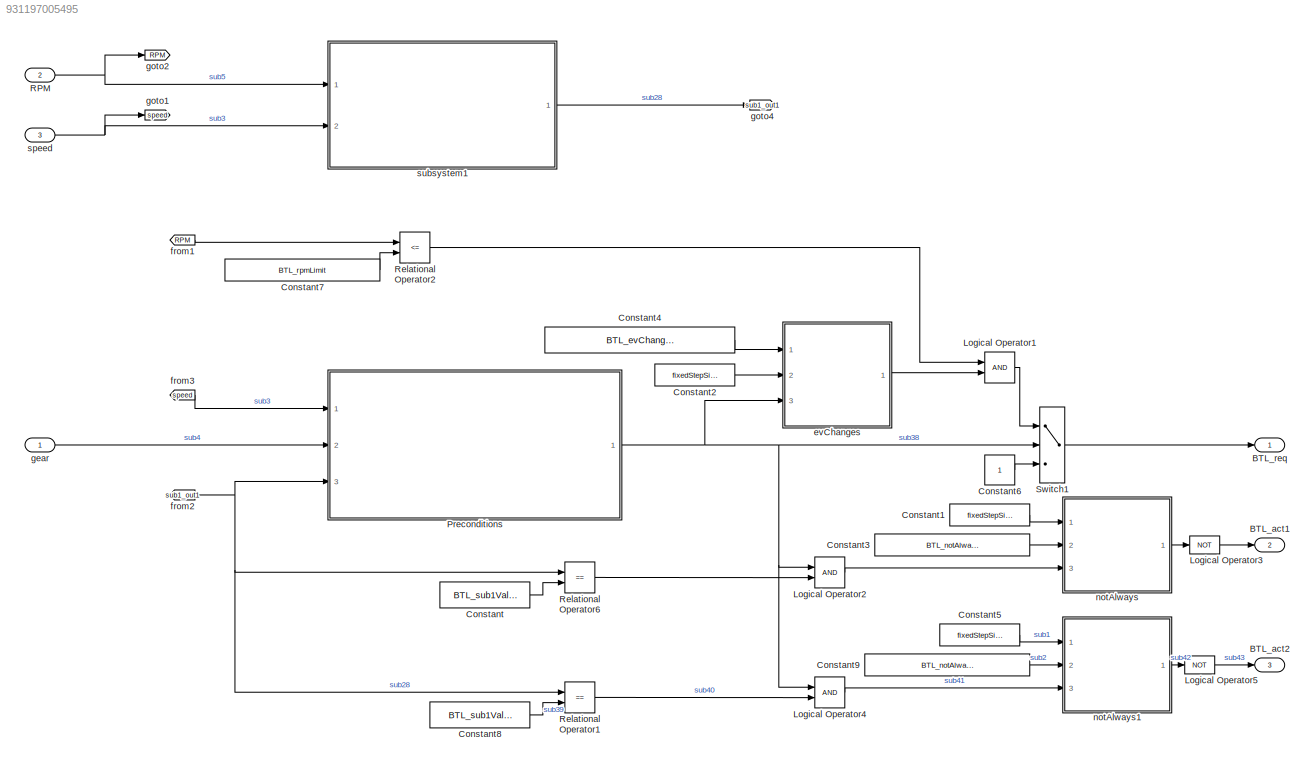
MODEL slx_931197005495
KIND model
CONFIG AbsTol = auto
CONFIG EnableMultiTasking = on
CONFIG FixedStep = fixedStepSize
CONFIG MaxStep = 0.001
CONFIG MinStep = auto
CONFIG RelTol = 1e-3
CONFIG SampleTimeConstraint = Unconstrained
CONFIG Solver = FixedStepDiscrete
CONFIG SolverName = FixedStepDiscrete
CONFIG StartTime = 0
CONFIG StopTime = 5
WORKSPACE source: mxarray member
WORKSPACE Occurrence: object (value not decoded)
WORKSPACE Partitions: object (value not decoded)
WORKSPACE Severity: object (value not decoded)
WORKSPACE block: handle (value not decoded)
WORKSPACE t = 0
WORKSPACE time = 0
BLOCK [Outport] BTL_act1
  IconDisplay = Port number
  OutDataTypeStr = boolean
  Port = 2
BLOCK [Outport] BTL_act2
  IconDisplay = Port number
  OutDataTypeStr = boolean
  Port = 3
BLOCK [Outport] BTL_req
  IconDisplay = Port number
  OutDataTypeStr = boolean
BLOCK [Constant] Constant
  Value = BTL_sub1Value
BLOCK [Constant] Constant1
  Value = fixedStepSize
BLOCK [Constant] Constant2
  Value = fixedStepSize
BLOCK [Constant] Constant3
  Value = BTL_notAlwaysTime
BLOCK [Constant] Constant4
  Value = BTL_evChangesTime
BLOCK [Constant] Constant5
  Value = fixedStepSize
BLOCK [Constant] Constant6
  OutDataTypeStr = boolean
BLOCK [Constant] Constant7
  Value = BTL_rpmLimit
BLOCK [Constant] Constant8
  Value = BTL_sub1Value2
BLOCK [Constant] Constant9
  Value = BTL_notAlwaysTime2
BLOCK [Logic] Logical Operator1
  AllPortsSameDT = off
  OutDataTypeStr = boolean
  Ports = [2, 1]
BLOCK [Logic] Logical Operator2
  AllPortsSameDT = off
  OutDataTypeStr = boolean
  Ports = [2, 1]
BLOCK [Logic] Logical Operator3
  AllPortsSameDT = off
  Operator = NOT
  OutDataTypeStr = boolean
  Ports = [1, 1]
BLOCK [Logic] Logical Operator4
  AllPortsSameDT = off
  OutDataTypeStr = boolean
  Ports = [2, 1]
BLOCK [Logic] Logical Operator5
  AllPortsSameDT = off
  Operator = NOT
  OutDataTypeStr = boolean
  Ports = [1, 1]
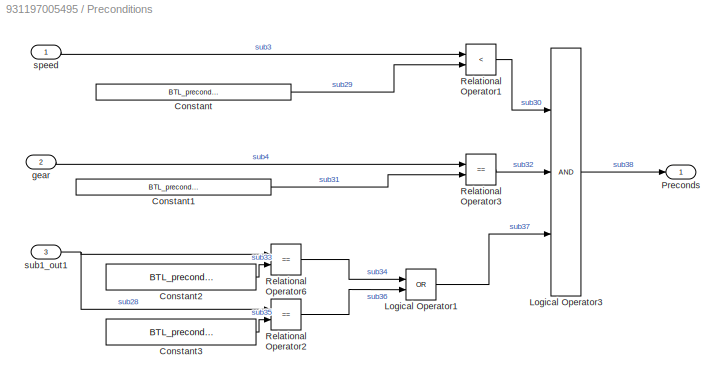
BLOCK [SubSystem] Preconditions
  Ports = [3, 1]
  RequestExecContextInheritance = off
BLOCK [Constant] Preconditions/Constant
  Value = BTL_preconditionSpeedLim
BLOCK [Constant] Preconditions/Constant1
  Value = BTL_preconditionGear
BLOCK [Constant] Preconditions/Constant2
  Value = BTL_preconditionSub1Value
BLOCK [Constant] Preconditions/Constant3
  Value = BTL_preconditionSub1Value2
BLOCK [Logic] Preconditions/Logical Operator1
  AllPortsSameDT = off
  Operator = OR
  OutDataTypeStr = boolean
  Ports = [2, 1]
BLOCK [Logic] Preconditions/Logical Operator3
  AllPortsSameDT = off
  Inputs = 3
  OutDataTypeStr = boolean
  Ports = [3, 1]
BLOCK [Outport] Preconditions/Preconds
  IconDisplay = Port number
BLOCK [RelationalOperator] Preconditions/Relational Operator1
  InputSameDT = off
  Operator = <
  OutDataTypeStr = boolean
  Ports = [2, 1]
BLOCK [RelationalOperator] Preconditions/Relational Operator2
  InputSameDT = off
  Operator = ==
  OutDataTypeStr = boolean
  Ports = [2, 1]
BLOCK [RelationalOperator] Preconditions/Relational Operator3
  InputSameDT = off
  Operator = ==
  OutDataTypeStr = boolean
  Ports = [2, 1]
BLOCK [RelationalOperator] Preconditions/Relational Operator6
  InputSameDT = off
  Operator = ==
  OutDataTypeStr = boolean
  Ports = [2, 1]
BLOCK [Inport] Preconditions/gear
  IconDisplay = Port number
  Port = 2
BLOCK [Inport] Preconditions/speed
  IconDisplay = Port number
BLOCK [Inport] Preconditions/sub1_out1
  IconDisplay = Port number
  Port = 3
BLOCK [Inport] RPM
  IconDisplay = Port number
  Port = 2
  PortDimensions = 1
  SamplingMode = Sample based
  SignalType = real
BLOCK [RelationalOperator] Relational Operator1
  InputSameDT = off
  Operator = ==
  OutDataTypeStr = boolean
  Ports = [2, 1]
BLOCK [RelationalOperator] Relational Operator2
  InputSameDT = off
  Operator = <=
  OutDataTypeStr = boolean
  Ports = [2, 1]
BLOCK [RelationalOperator] Relational Operator6
  InputSameDT = off
  Operator = ==
  OutDataTypeStr = boolean
  Ports = [2, 1]
BLOCK [Switch] Switch1
  Criteria = u2 ~= 0
  InputSameDT = off
  SaturateOnIntegerOverflow = off
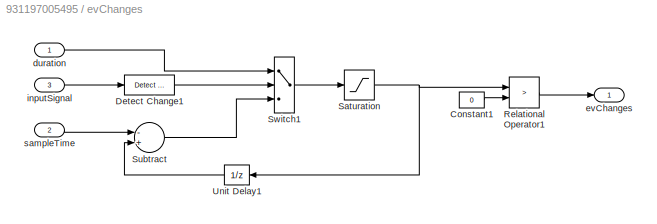
BLOCK [SubSystem] evChanges
  CopyFcn = set_param(gcbh,'LinkStatus','none');
  Ports = [3, 1]
  RequestExecContextInheritance = off
BLOCK [Constant] evChanges/Constant1
  Value = 0
BLOCK [Reference] evChanges/Detect Change1  REF=simulink/Logic and Bit
Operations/Detect
Change
  Ports = [1, 1]
  SourceBlock = simulink/Logic and Bit\nOperations/Detect\nChange
  SourceProductBaseCode = SL
  SourceProductName = Simulink
  SourceType = Detect Change
BLOCK [RelationalOperator] evChanges/Relational Operator1
  InputSameDT = off
  Operator = >
  OutDataTypeStr = boolean
  Ports = [2, 1]
BLOCK [Saturate] evChanges/Saturation
  InputPortMap = u0
  LowerLimit = 0
  Ports = [1, 1]
  UpperLimit = Inf
BLOCK [Sum] evChanges/Subtract
  InputSameDT = off
  Inputs = -+
  OutDataTypeStr = Inherit: Inherit via internal rule
  Ports = [2, 1]
  SaturateOnIntegerOverflow = off
BLOCK [Switch] evChanges/Switch1
  Criteria = u2 ~= 0
  InputSameDT = off
  SaturateOnIntegerOverflow = off
BLOCK [UnitDelay] evChanges/Unit Delay1
  HasFrameUpgradeWarning = on
  SampleTime = -1
BLOCK [Inport] evChanges/duration
  IconDisplay = Port number
BLOCK [Outport] evChanges/evChanges
  IconDisplay = Port number
  VectorParamsAs1DForOutWhenUnconnected = off
BLOCK [Inport] evChanges/inputSignal
  IconDisplay = Port number
  Port = 3
BLOCK [Inport] evChanges/sampleTime
  IconDisplay = Port number
  Port = 2
BLOCK [From] from1
  AttributesFormatString = %<GotoTag>
  GotoTag = RPM
BLOCK [From] from2
  AttributesFormatString = %<GotoTag>
  GotoTag = sub1_out1
BLOCK [From] from3
  AttributesFormatString = %<GotoTag>
  GotoTag = speed
BLOCK [Inport] gear
  IconDisplay = Port number
  PortDimensions = 1
  SamplingMode = Sample based
  SignalType = real
BLOCK [Goto] goto1
  AttributesFormatString = %<GotoTag>
  GotoTag = speed
BLOCK [Goto] goto2
  AttributesFormatString = %<GotoTag>
  GotoTag = RPM
BLOCK [Goto] goto4
  AttributesFormatString = %<GotoTag>
  GotoTag = sub1_out1
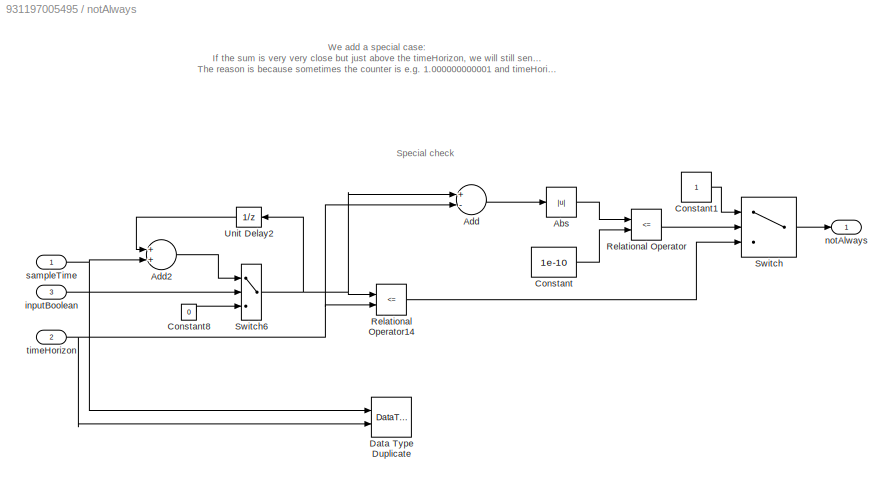
BLOCK [SubSystem] notAlways
  CopyFcn = set_param(gcbh,'LinkStatus','none');
  Ports = [3, 1]
  RequestExecContextInheritance = off
BLOCK [Abs] notAlways/Abs
  SaturateOnIntegerOverflow = off
BLOCK [Sum] notAlways/Add
  InputSameDT = off
  Inputs = +-
  OutDataTypeStr = Inherit: Inherit via internal rule
  Ports = [2, 1]
  SaturateOnIntegerOverflow = off
BLOCK [Sum] notAlways/Add2
  InputSameDT = off
  OutDataTypeStr = Inherit: Inherit via internal rule
  Ports = [2, 1]
  SaturateOnIntegerOverflow = off
BLOCK [Constant] notAlways/Constant
  Value = 1e-10
BLOCK [Constant] notAlways/Constant1
  OutDataTypeStr = boolean
BLOCK [Constant] notAlways/Constant8
  OutDataTypeStr = Inherit: Inherit via back propagation
  Value = 0
BLOCK [DataTypeDuplicate] notAlways/Data Type Duplicate
  Ports = [2]
BLOCK [RelationalOperator] notAlways/Relational Operator
  InputSameDT = off
  Operator = <=
  OutDataTypeStr = boolean
  Ports = [2, 1]
  RndMeth = Simplest
BLOCK [RelationalOperator] notAlways/Relational Operator14
  InputSameDT = off
  Operator = <=
  OutDataTypeStr = boolean
  Ports = [2, 1]
BLOCK [Switch] notAlways/Switch
  Criteria = u2 ~= 0
  InputSameDT = off
  SaturateOnIntegerOverflow = off
BLOCK [Switch] notAlways/Switch6
  Criteria = u2 ~= 0
  InputSameDT = off
  SaturateOnIntegerOverflow = off
BLOCK [UnitDelay] notAlways/Unit Delay2
  HasFrameUpgradeWarning = on
  SampleTime = -1
BLOCK [Inport] notAlways/inputBoolean
  IconDisplay = Port number
  Port = 3
BLOCK [Outport] notAlways/notAlways
  IconDisplay = Port number
  VectorParamsAs1DForOutWhenUnconnected = off
BLOCK [Inport] notAlways/sampleTime
  IconDisplay = Port number
BLOCK [Inport] notAlways/timeHorizon
  IconDisplay = Port number
  Port = 2
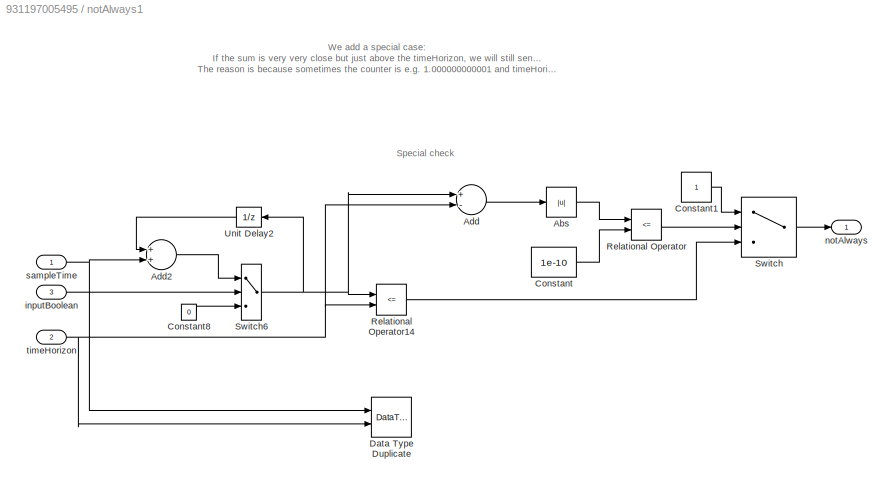
BLOCK [SubSystem] notAlways1
  CopyFcn = set_param(gcbh,'LinkStatus','none');
  Ports = [3, 1]
  RequestExecContextInheritance = off
BLOCK [Abs] notAlways1/Abs
  SaturateOnIntegerOverflow = off
BLOCK [Sum] notAlways1/Add
  InputSameDT = off
  Inputs = +-
  OutDataTypeStr = Inherit: Inherit via internal rule
  Ports = [2, 1]
  SaturateOnIntegerOverflow = off
BLOCK [Sum] notAlways1/Add2
  InputSameDT = off
  OutDataTypeStr = Inherit: Inherit via internal rule
  Ports = [2, 1]
  SaturateOnIntegerOverflow = off
BLOCK [Constant] notAlways1/Constant
  Value = 1e-10
BLOCK [Constant] notAlways1/Constant1
  OutDataTypeStr = boolean
BLOCK [Constant] notAlways1/Constant8
  OutDataTypeStr = Inherit: Inherit via back propagation
  Value = 0
BLOCK [DataTypeDuplicate] notAlways1/Data Type Duplicate
  Ports = [2]
BLOCK [RelationalOperator] notAlways1/Relational Operator
  InputSameDT = off
  Operator = <=
  OutDataTypeStr = boolean
  Ports = [2, 1]
  RndMeth = Simplest
BLOCK [RelationalOperator] notAlways1/Relational Operator14
  InputSameDT = off
  Operator = <=
  OutDataTypeStr = boolean
  Ports = [2, 1]
BLOCK [Switch] notAlways1/Switch
  Criteria = u2 ~= 0
  InputSameDT = off
  SaturateOnIntegerOverflow = off
BLOCK [Switch] notAlways1/Switch6
  Criteria = u2 ~= 0
  InputSameDT = off
  SaturateOnIntegerOverflow = off
BLOCK [UnitDelay] notAlways1/Unit Delay2
  HasFrameUpgradeWarning = on
  SampleTime = -1
BLOCK [Inport] notAlways1/inputBoolean
  IconDisplay = Port number
  Port = 3
BLOCK [Outport] notAlways1/notAlways
  IconDisplay = Port number
  VectorParamsAs1DForOutWhenUnconnected = off
BLOCK [Inport] notAlways1/sampleTime
  IconDisplay = Port number
BLOCK [Inport] notAlways1/timeHorizon
  IconDisplay = Port number
  Port = 2
BLOCK [Inport] speed
  IconDisplay = Port number
  Port = 3
  PortDimensions = 1
  SamplingMode = Sample based
  SignalType = real
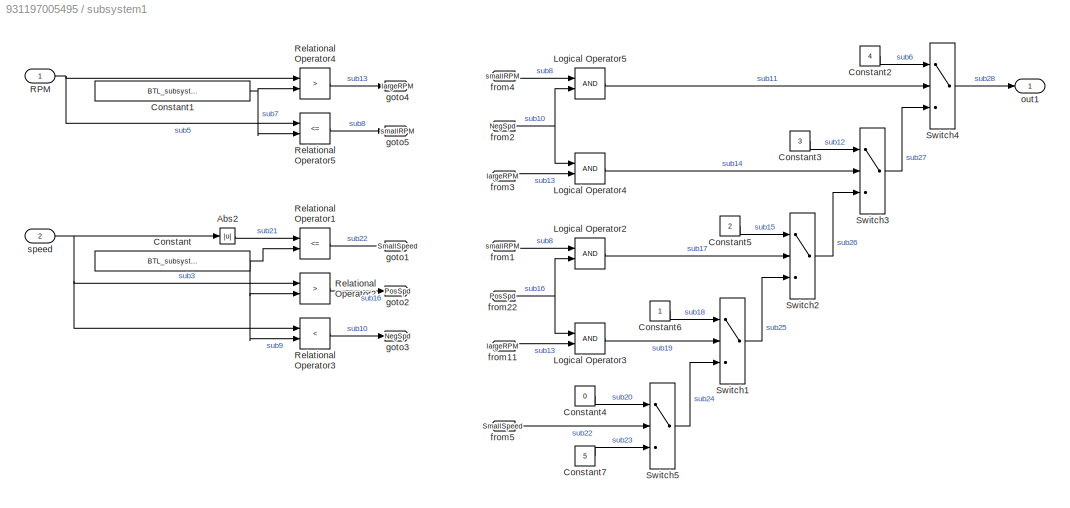
BLOCK [SubSystem] subsystem1
  Ports = [2, 1]
  RequestExecContextInheritance = off
BLOCK [Abs] subsystem1/Abs2
  SaturateOnIntegerOverflow = off
BLOCK [Constant] subsystem1/Constant
  Value = BTL_subsystem1_speedLimit
BLOCK [Constant] subsystem1/Constant1
  Value = BTL_subsystem1_rpmLimit
BLOCK [Constant] subsystem1/Constant2
  Value = 4
BLOCK [Constant] subsystem1/Constant3
  Value = 3
BLOCK [Constant] subsystem1/Constant4
  Value = 0
BLOCK [Constant] subsystem1/Constant5
  Value = 2
BLOCK [Constant] subsystem1/Constant6
BLOCK [Constant] subsystem1/Constant7
  Value = 5
BLOCK [Logic] subsystem1/Logical Operator2
  AllPortsSameDT = off
  OutDataTypeStr = boolean
  Ports = [2, 1]
BLOCK [Logic] subsystem1/Logical Operator3
  AllPortsSameDT = off
  OutDataTypeStr = boolean
  Ports = [2, 1]
BLOCK [Logic] subsystem1/Logical Operator4
  AllPortsSameDT = off
  OutDataTypeStr = boolean
  Ports = [2, 1]
BLOCK [Logic] subsystem1/Logical Operator5
  AllPortsSameDT = off
  OutDataTypeStr = boolean
  Ports = [2, 1]
BLOCK [Inport] subsystem1/RPM
  IconDisplay = Port number
BLOCK [RelationalOperator] subsystem1/Relational Operator1
  InputSameDT = off
  Operator = <=
  OutDataTypeStr = boolean
  Ports = [2, 1]
BLOCK [RelationalOperator] subsystem1/Relational Operator2
  InputSameDT = off
  Operator = >
  OutDataTypeStr = boolean
  Ports = [2, 1]
BLOCK [RelationalOperator] subsystem1/Relational Operator3
  InputSameDT = off
  Operator = <
  OutDataTypeStr = boolean
  Ports = [2, 1]
BLOCK [RelationalOperator] subsystem1/Relational Operator4
  InputSameDT = off
  Operator = >
  OutDataTypeStr = boolean
  Ports = [2, 1]
BLOCK [RelationalOperator] subsystem1/Relational Operator5
  InputSameDT = off
  Operator = <=
  OutDataTypeStr = boolean
  Ports = [2, 1]
BLOCK [Switch] subsystem1/Switch1
  Criteria = u2 ~= 0
  InputSameDT = off
  SaturateOnIntegerOverflow = off
BLOCK [Switch] subsystem1/Switch2
  Criteria = u2 ~= 0
  InputSameDT = off
  SaturateOnIntegerOverflow = off
BLOCK [Switch] subsystem1/Switch3
  Criteria = u2 ~= 0
  InputSameDT = off
  SaturateOnIntegerOverflow = off
BLOCK [Switch] subsystem1/Switch4
  Criteria = u2 ~= 0
  InputSameDT = off
  SaturateOnIntegerOverflow = off
BLOCK [Switch] subsystem1/Switch5
  Criteria = u2 ~= 0
  InputSameDT = off
  SaturateOnIntegerOverflow = off
BLOCK [From] subsystem1/from1
  AttributesFormatString = %<GotoTag>
  GotoTag = smallRPM
BLOCK [From] subsystem1/from11
  AttributesFormatString = %<GotoTag>
  GotoTag = largeRPM
BLOCK [From] subsystem1/from2
  AttributesFormatString = %<GotoTag>
  GotoTag = NegSpd
BLOCK [From] subsystem1/from22
  AttributesFormatString = %<GotoTag>
  GotoTag = PosSpd
BLOCK [From] subsystem1/from3
  AttributesFormatString = %<GotoTag>
  GotoTag = largeRPM
BLOCK [From] subsystem1/from4
  AttributesFormatString = %<GotoTag>
  GotoTag = smallRPM
BLOCK [From] subsystem1/from5
  AttributesFormatString = %<GotoTag>
  GotoTag = SmallSpeed
BLOCK [Goto] subsystem1/goto1
  AttributesFormatString = %<GotoTag>
  GotoTag = SmallSpeed
BLOCK [Goto] subsystem1/goto2
  AttributesFormatString = %<GotoTag>
  GotoTag = PosSpd
BLOCK [Goto] subsystem1/goto3
  AttributesFormatString = %<GotoTag>
  GotoTag = NegSpd
BLOCK [Goto] subsystem1/goto4
  AttributesFormatString = %<GotoTag>
  GotoTag = largeRPM
BLOCK [Goto] subsystem1/goto5
  AttributesFormatString = %<GotoTag>
  GotoTag = smallRPM
BLOCK [Outport] subsystem1/out1
  IconDisplay = Port number
BLOCK [Inport] subsystem1/speed
  IconDisplay = Port number
  Port = 2
ANNOTATION notAlways: We add a special case: If the sum is very very close but just above the timeHorizon, we will still send TRUE as output! The reason is because sometimes the counter is e.g. 1.000000000001 and timeHorizon is 1, which is essentially just a floating point error.
ANNOTATION notAlways: Special check
ANNOTATION notAlways1: We add a special case: If the sum is very very close but just above the timeHorizon, we will still send TRUE as output! The reason is because sometimes the counter is e.g. 1.000000000001 and timeHorizon is 1, which is essentially just a floating point error.
ANNOTATION notAlways1: Special check
LINE Constant1:1 -> notAlways:1
LINE Constant2:1 -> evChanges:2
LINE Constant3:1 -> notAlways:2
LINE Constant4:1 -> evChanges:1
LINE Constant5:1 -> notAlways1:1
LINE Constant6:1 -> Switch1:3
LINE Constant7:1 -> Relational Operator2:2
LINE Constant8:1 -> Relational Operator1:2
LINE Constant9:1 -> notAlways1:2
LINE Constant:1 -> Relational Operator6:2
LINE Logical Operator1:1 -> Switch1:1
LINE Logical Operator2:1 -> notAlways:3
LINE Logical Operator3:1 -> BTL_act1:1
LINE Logical Operator4:1 -> notAlways1:3
LINE Logical Operator5:1 -> BTL_act2:1
LINE Preconditions/Constant1:1 -> Preconditions/Relational Operator3:2
LINE Preconditions/Constant2:1 -> Preconditions/Relational Operator6:2
LINE Preconditions/Constant3:1 -> Preconditions/Relational Operator2:2
LINE Preconditions/Constant:1 -> Preconditions/Relational Operator1:2
LINE Preconditions/Logical Operator1:1 -> Preconditions/Logical Operator3:3
LINE Preconditions/Logical Operator3:1 -> Preconditions/Preconds:1
LINE Preconditions/Relational Operator1:1 -> Preconditions/Logical Operator3:1
LINE Preconditions/Relational Operator2:1 -> Preconditions/Logical Operator1:2
LINE Preconditions/Relational Operator3:1 -> Preconditions/Logical Operator3:2
LINE Preconditions/Relational Operator6:1 -> Preconditions/Logical Operator1:1
LINE Preconditions/gear:1 -> Preconditions/Relational Operator3:1
LINE Preconditions/speed:1 -> Preconditions/Relational Operator1:1
NET Preconditions/sub1_out1:1 -> Preconditions/Relational Operator2:1, Preconditions/Relational Operator6:1
NET Preconditions:1 -> Logical Operator2:1, Logical Operator4:1, Switch1:2, evChanges:3
NET RPM:1 -> goto2:1, subsystem1:1
LINE Relational Operator1:1 -> Logical Operator4:2
LINE Relational Operator2:1 -> Logical Operator1:1
LINE Relational Operator6:1 -> Logical Operator2:2
LINE Switch1:1 -> BTL_req:1
LINE evChanges/Constant1:1 -> evChanges/Relational Operator1:2
LINE evChanges/Detect Change1:1 -> evChanges/Switch1:2
LINE evChanges/Relational Operator1:1 -> evChanges/evChanges:1
NET evChanges/Saturation:1 -> evChanges/Relational Operator1:1, evChanges/Unit Delay1:1
LINE evChanges/Subtract:1 -> evChanges/Switch1:3
LINE evChanges/Switch1:1 -> evChanges/Saturation:1
LINE evChanges/Unit Delay1:1 -> evChanges/Subtract:2
LINE evChanges/duration:1 -> evChanges/Switch1:1
LINE evChanges/inputSignal:1 -> evChanges/Detect Change1:1
LINE evChanges/sampleTime:1 -> evChanges/Subtract:1
LINE evChanges:1 -> Logical Operator1:2
LINE from1:1 -> Relational Operator2:1
NET from2:1 -> Preconditions:3, Relational Operator1:1, Relational Operator6:1
LINE from3:1 -> Preconditions:1
LINE gear:1 -> Preconditions:2
LINE notAlways/Abs:1 -> notAlways/Relational Operator:1
LINE notAlways/Add2:1 -> notAlways/Switch6:1
LINE notAlways/Add:1 -> notAlways/Abs:1
LINE notAlways/Constant1:1 -> notAlways/Switch:1
LINE notAlways/Constant8:1 -> notAlways/Switch6:3
LINE notAlways/Constant:1 -> notAlways/Relational Operator:2
LINE notAlways/Relational Operator14:1 -> notAlways/Switch:3
LINE notAlways/Relational Operator:1 -> notAlways/Switch:2
NET notAlways/Switch6:1 -> notAlways/Add:1, notAlways/Relational Operator14:1, notAlways/Unit Delay2:1
LINE notAlways/Switch:1 -> notAlways/notAlways:1
LINE notAlways/Unit Delay2:1 -> notAlways/Add2:1
LINE notAlways/inputBoolean:1 -> notAlways/Switch6:2
NET notAlways/sampleTime:1 -> notAlways/Add2:2, notAlways/Data Type Duplicate:1
NET notAlways/timeHorizon:1 -> notAlways/Add:2, notAlways/Data Type Duplicate:2, notAlways/Relational Operator14:2
LINE notAlways1/Abs:1 -> notAlways1/Relational Operator:1
LINE notAlways1/Add2:1 -> notAlways1/Switch6:1
LINE notAlways1/Add:1 -> notAlways1/Abs:1
LINE notAlways1/Constant1:1 -> notAlways1/Switch:1
LINE notAlways1/Constant8:1 -> notAlways1/Switch6:3
LINE notAlways1/Constant:1 -> notAlways1/Relational Operator:2
LINE notAlways1/Relational Operator14:1 -> notAlways1/Switch:3
LINE notAlways1/Relational Operator:1 -> notAlways1/Switch:2
NET notAlways1/Switch6:1 -> notAlways1/Add:1, notAlways1/Relational Operator14:1, notAlways1/Unit Delay2:1
LINE notAlways1/Switch:1 -> notAlways1/notAlways:1
LINE notAlways1/Unit Delay2:1 -> notAlways1/Add2:1
LINE notAlways1/inputBoolean:1 -> notAlways1/Switch6:2
NET notAlways1/sampleTime:1 -> notAlways1/Add2:2, notAlways1/Data Type Duplicate:1
NET notAlways1/timeHorizon:1 -> notAlways1/Add:2, notAlways1/Data Type Duplicate:2, notAlways1/Relational Operator14:2
LINE notAlways1:1 -> Logical Operator5:1
LINE notAlways:1 -> Logical Operator3:1
NET speed:1 -> goto1:1, subsystem1:2
LINE subsystem1/Abs2:1 -> subsystem1/Relational Operator1:1
NET subsystem1/Constant1:1 -> subsystem1/Relational Operator4:2, subsystem1/Relational Operator5:2
LINE subsystem1/Constant2:1 -> subsystem1/Switch4:1
LINE subsystem1/Constant3:1 -> subsystem1/Switch3:1
LINE subsystem1/Constant4:1 -> subsystem1/Switch5:1
LINE subsystem1/Constant5:1 -> subsystem1/Switch2:1
LINE subsystem1/Constant6:1 -> subsystem1/Switch1:1
LINE subsystem1/Constant7:1 -> subsystem1/Switch5:3
NET subsystem1/Constant:1 -> subsystem1/Relational Operator1:2, subsystem1/Relational Operator2:2, subsystem1/Relational Operator3:2
LINE subsystem1/Logical Operator2:1 -> subsystem1/Switch2:2
LINE subsystem1/Logical Operator3:1 -> subsystem1/Switch1:2
LINE subsystem1/Logical Operator4:1 -> subsystem1/Switch3:2
LINE subsystem1/Logical Operator5:1 -> subsystem1/Switch4:2
NET subsystem1/RPM:1 -> subsystem1/Relational Operator4:1, subsystem1/Relational Operator5:1
LINE subsystem1/Relational Operator1:1 -> subsystem1/goto1:1
LINE subsystem1/Relational Operator2:1 -> subsystem1/goto2:1
LINE subsystem1/Relational Operator3:1 -> subsystem1/goto3:1
LINE subsystem1/Relational Operator4:1 -> subsystem1/goto4:1
LINE subsystem1/Relational Operator5:1 -> subsystem1/goto5:1
LINE subsystem1/Switch1:1 -> subsystem1/Switch2:3
LINE subsystem1/Switch2:1 -> subsystem1/Switch3:3
LINE subsystem1/Switch3:1 -> subsystem1/Switch4:3
LINE subsystem1/Switch4:1 -> subsystem1/out1:1
LINE subsystem1/Switch5:1 -> subsystem1/Switch1:3
LINE subsystem1/from11:1 -> subsystem1/Logical Operator3:2
LINE subsystem1/from1:1 -> subsystem1/Logical Operator2:1
NET subsystem1/from22:1 -> subsystem1/Logical Operator2:2, subsystem1/Logical Operator3:1
NET subsystem1/from2:1 -> subsystem1/Logical Operator4:1, subsystem1/Logical Operator5:2
LINE subsystem1/from3:1 -> subsystem1/Logical Operator4:2
LINE subsystem1/from4:1 -> subsystem1/Logical Operator5:1
LINE subsystem1/from5:1 -> subsystem1/Switch5:2
NET subsystem1/speed:1 -> subsystem1/Abs2:1, subsystem1/Relational Operator2:1, subsystem1/Relational Operator3:1
LINE subsystem1:1 -> goto4:1
note: NET lines group one-source signal fan-out (src -> all destinations, sorted); 1:1 wires keep LINE
